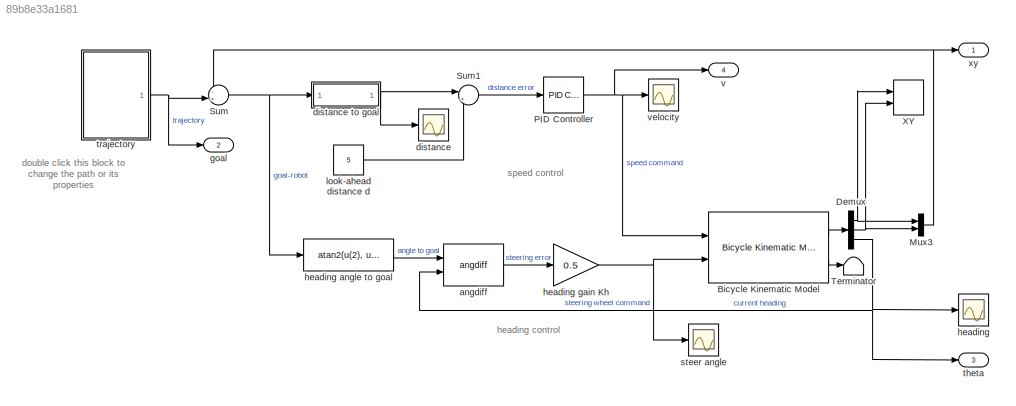
MODEL slx_89b8e33a1681
KIND model
CONFIG AbsTol = auto
CONFIG EnableMultiTasking = on
CONFIG FixedStep = 0.2
CONFIG MaxStep = 0.1
CONFIG MinStep = auto
CONFIG RelTol = 1e-3
CONFIG SampleTimeConstraint = Unconstrained
CONFIG SolverName = ode45
CONFIG StartFcn = % remove the red dashed line draw in StopFcn\nh = findobj('Tag',  'SL_PURSUIT_PATH');\nif ~isempty(h)\n    delete(h);\nend
CONFIG StartTime = 0.0
CONFIG StopFcn = % get the waypoints from trajectory block\nh = getSimulinkBlockHandle([gcs '/trajectory']);\npath = str2num(get_param(h, 'path'));\n\n% overlay it on the XY scope, tag it so it can be cleaned up in StartFcn\nset(0, 'ShowHiddenHandles', 'on')\nfig = findobj('name', 'XY');\nax = findobj('type', 'axes');\naxes(ax);\nhold on\nplot(path(:,1), path(:,2), 'Color',  'red', 'LineStyle', '--', 'LineWidth', 2, 'Tag', ...<+69ch>
CONFIG StopTime = 76
BLOCK [Reference] Bicycle Kinematic Model  REF=robotmobilelib/Bicycle Kinematic Model
  Ports = [2, 2]
  SourceBlock = robotmobilelib/Bicycle Kinematic Model
  SourceProductBaseCode = RO
  SourceType = Bicycle Kinematic Model
BLOCK [Demux] Demux
  Outputs = 3
  Ports = [1, 3]
BLOCK [Mux] Mux3
  DisplayOption = bar
  Inputs = 2
  Ports = [2, 1]
BLOCK [Reference] PID Controller  REF=slpidlib/PID Controller
  Ports = [1, 1]
  SourceBlock = slpidlib/PID Controller
  SourceProductBaseCode = SL
  SourceType = PID 1dof
BLOCK [Sum] Sum
  Inputs = -+|
  Ports = [2, 1]
BLOCK [Sum] Sum1
  Inputs = |+-
  Ports = [2, 1]
BLOCK [Terminator] Terminator
BLOCK [Record] XY
  CompatibilityTag = XY
  FileSettingsInternal = {"entries":[{"content":{"excelSettings":{"content":{},"type":"Streamout.ExcelSettings"}},"type":"Streamout.FileSettingStorage","uuid":"a0549be9-b4b4-4cf8-a043-782c6902c19d"}],"packageUris":["http://schema.mathworks.com/mf0/streamout_blocks/R2020a"],"version":"1.0"}
  Layout = [1 1]
  Ports = [2]
  SignalsInternal = {"entries":[{"content":{"signals":[{"content":{"blockPath":["sl_pursuit/XY"],"channel":[],"dimensions":[1],"domain":"sl_pursuit/XY","lineColor":"#a2142f","plots":[1],"port":1,"sid":[""],"signalID":1415,"signalName":"Demux:1"},"type":"RecordBlkView.Signal","uuid":"c418467e-589e-4042-99cd-478f7380a014"},{"content":{"blockPath":["sl_pursuit/XY"],"channel":[],"dimensions":[1],"domain":"sl_pursuit/XY",...<+347ch>
  VisualizationBindings = {"xyplotplugin":{"info":[{"series":[{"bindingParametersList":[{"parameter":"X-Axis","signalID":1415,"signalName":"Demux:1"},{"parameter":"Y-Axis","signalID":1419,"signalName":"Demux:2"}],"seriesID":18005}],"subplotID":1}]}}
  st = -1
BLOCK [Reference] angdiff  REF=roblocks/angdiff  (lib defined in mdl_2a292b13c81b, mdl_69400f8cfe22, +12 more)
  Ports = [2, 1]
  SourceBlock = roblocks/angdiff
BLOCK [Scope] distance
  Floating = off
  NumInputPorts = 1
  Ports = [1]
  ScopeSpecificationString = Simulink.scopes.TimeScopeBlockCfg('CurrentConfiguration', extmgr.ConfigurationSet(extmgr.Configuration('Core','General UI',true),extmgr.Configuration('Core','Source UI',true),extmgr.Configuration('Sources','WiredSimulink',true,'DataLoggingVariableName','ScopeData3','DataLoggingSaveFormat','StructureWithTime','DataLoggingLimitDataPoints',true,'DataLoggingDecimation','1'),extmgr.Configuration('Visua...<+1660ch>
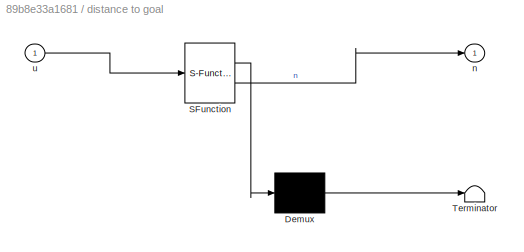
BLOCK [SubSystem] distance to goal
  ErrorFcn = Stateflow.Translate.translate
  PermitHierarchicalResolution = ExplicitOnly
  Ports = [1, 1]
  RequestExecContextInheritance = off
  SFBlockType = MATLAB Function
  TreatAsAtomicUnit = on
BLOCK [Demux] distance to goal/ Demux 
  Outputs = 1
  Ports = [1, 1]
BLOCK [S-Function] distance to goal/ SFunction 
  EnableBusSupport = on
  FunctionName = sf_sfun
  PortCounts = [1 2]
  Ports = [1, 2]
  SFcnIsStateOwnerBlock = off
  SFunctionDeploymentMode = off
  Tag = Stateflow S-Function 1
BLOCK [Terminator] distance to goal/ Terminator 
BLOCK [Outport] distance to goal/n
BLOCK [Inport] distance to goal/u
BLOCK [Outport] goal
  Port = 2
  VectorParamsAs1DForOutWhenUnconnected = off
BLOCK [Scope] heading 
  Floating = off
  NumInputPorts = 1
  Ports = [1]
  ScopeSpecificationString = Simulink.scopes.TimeScopeBlockCfg('CurrentConfiguration', extmgr.ConfigurationSet(extmgr.Configuration('Core','General UI',true),extmgr.Configuration('Core','Source UI',true),extmgr.Configuration('Sources','WiredSimulink',true,'DataLoggingSaveFormat','StructureWithTime','DataLoggingLimitDataPoints',true,'DataLoggingDecimation','1'),extmgr.Configuration('Visuals','Time Domain',true,'SerializedDispl...<+1618ch>
BLOCK [Fcn] heading angle to goal
  Expr = atan2(u(2), u(1))
BLOCK [Gain] heading gain Kh
  Gain = 0.5
BLOCK [Constant] look-ahead distance d
  Value = 5
BLOCK [Scope] steer angle
  Floating = off
  NumInputPorts = 1
  Ports = [1]
  ScopeSpecificationString = Simulink.scopes.TimeScopeBlockCfg('CurrentConfiguration', extmgr.ConfigurationSet(extmgr.Configuration('Core','General UI',true),extmgr.Configuration('Core','Source UI',true),extmgr.Configuration('Sources','WiredSimulink',true,'DataLoggingVariableName','ScopeData2','DataLoggingSaveFormat','StructureWithTime','DataLoggingLimitDataPoints',true,'DataLoggingDecimation','1'),extmgr.Configuration('Visua...<+1665ch>
BLOCK [Outport] theta
  Port = 3
  VectorParamsAs1DForOutWhenUnconnected = off
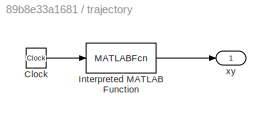
BLOCK [SubSystem] trajectory
  Ports = [0, 1]
  RequestExecContextInheritance = off
BLOCK [Clock] trajectory/Clock
BLOCK [MATLABFcn] trajectory/Interpreted MATLAB Function
  MATLABFcn = interp1( linspace(0, total_time, size(robot_traj,1)), robot_traj, u)
  Ports = [1, 1]
BLOCK [Outport] trajectory/xy
  VectorParamsAs1DForOutWhenUnconnected = off
BLOCK [Outport] v
  Port = 4
  VectorParamsAs1DForOutWhenUnconnected = off
BLOCK [Scope] velocity
  Floating = off
  NumInputPorts = 1
  Ports = [1]
  ScopeSpecificationString = Simulink.scopes.TimeScopeBlockCfg('CurrentConfiguration', extmgr.ConfigurationSet(extmgr.Configuration('Core','General UI',true),extmgr.Configuration('Core','Source UI',true),extmgr.Configuration('Sources','WiredSimulink',true,'DataLoggingVariableName','ScopeData1','DataLoggingSaveFormat','StructureWithTime','DataLoggingLimitDataPoints',true,'DataLoggingDecimation','1'),extmgr.Configuration('Visua...<+1661ch>
BLOCK [Outport] xy
  VectorParamsAs1DForOutWhenUnconnected = off
ANNOTATION (root): double click this block to change the path or its properties
ANNOTATION (root): heading control
ANNOTATION (root): speed control
LINE Bicycle Kinematic Model:1 -> Demux:1
LINE Bicycle Kinematic Model:2 -> Terminator:1
NET Demux:1 -> Mux3:1, XY:1
NET Demux:2 -> Mux3:2, XY:2
NET Demux:3 -> angdiff:2, heading :1, theta:1
NET Mux3:1 -> Sum:1, xy:1
NET PID Controller:1 -> Bicycle Kinematic Model:1, v:1, velocity:1
LINE Sum1:1 -> PID Controller:1
NET Sum:1 -> distance to goal:1, heading angle to goal:1
LINE angdiff:1 -> heading gain Kh:1
NET distance to goal:1 -> Sum1:1, distance:1
LINE heading angle to goal:1 -> angdiff:1
NET heading gain Kh:1 -> Bicycle Kinematic Model:2, steer angle:1
LINE look-ahead distance d:1 -> Sum1:2
LINE trajectory/Clock:1 -> trajectory/Interpreted MATLAB Function:1
LINE trajectory/Interpreted MATLAB Function:1 -> trajectory/xy:1
NET trajectory:1 -> Sum:2, goal:1
note: NET lines group one-source signal fan-out (src -> all destinations, sorted); 1:1 wires keep LINE
CHART distance to goal states=1 transitions=1
  STATE_LABEL 'eML_blk_kernel()'
  STATE_LABEL 'SCRIPT:\nfunction n = norm(u)\n\nn = norm(u);\n\nend'
CHART  states=0 transitions=0
